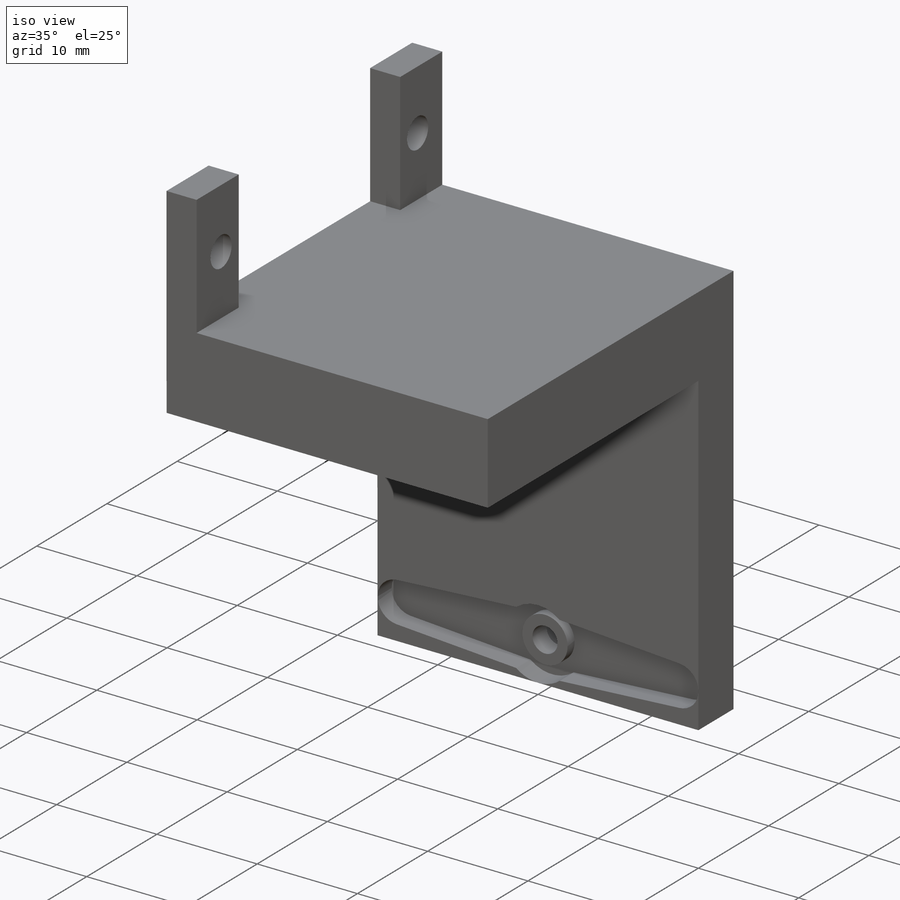
[diagram: iso view]
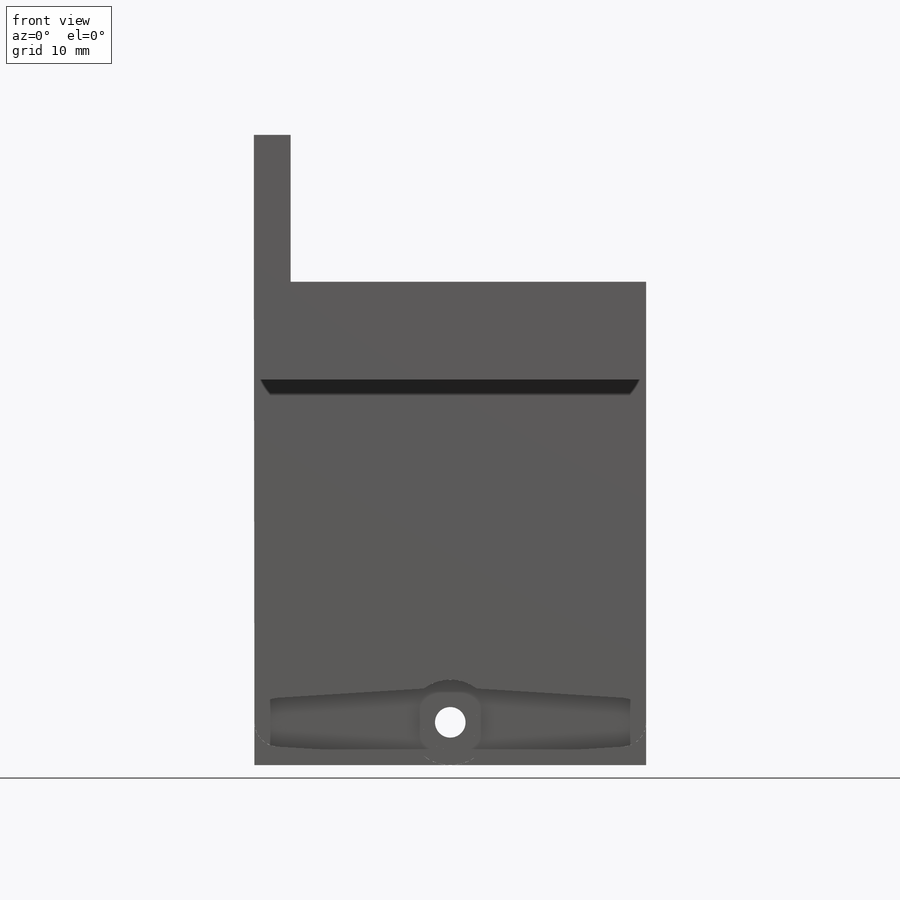
[diagram: front view]
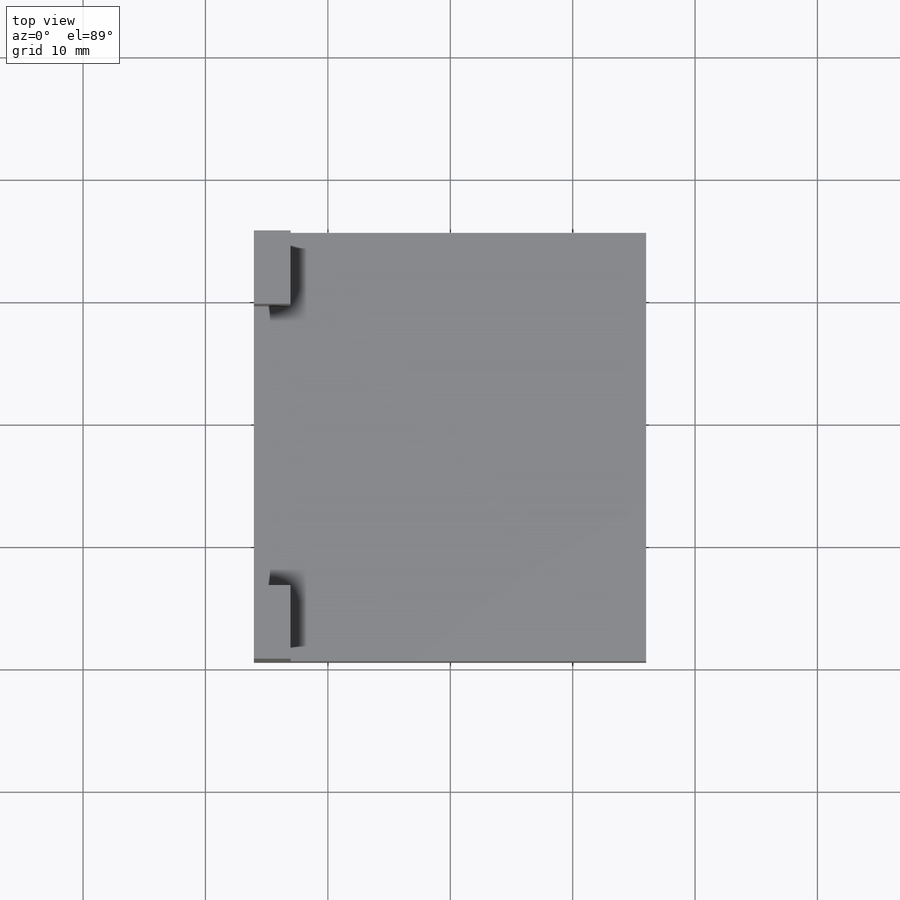
[diagram: top view]
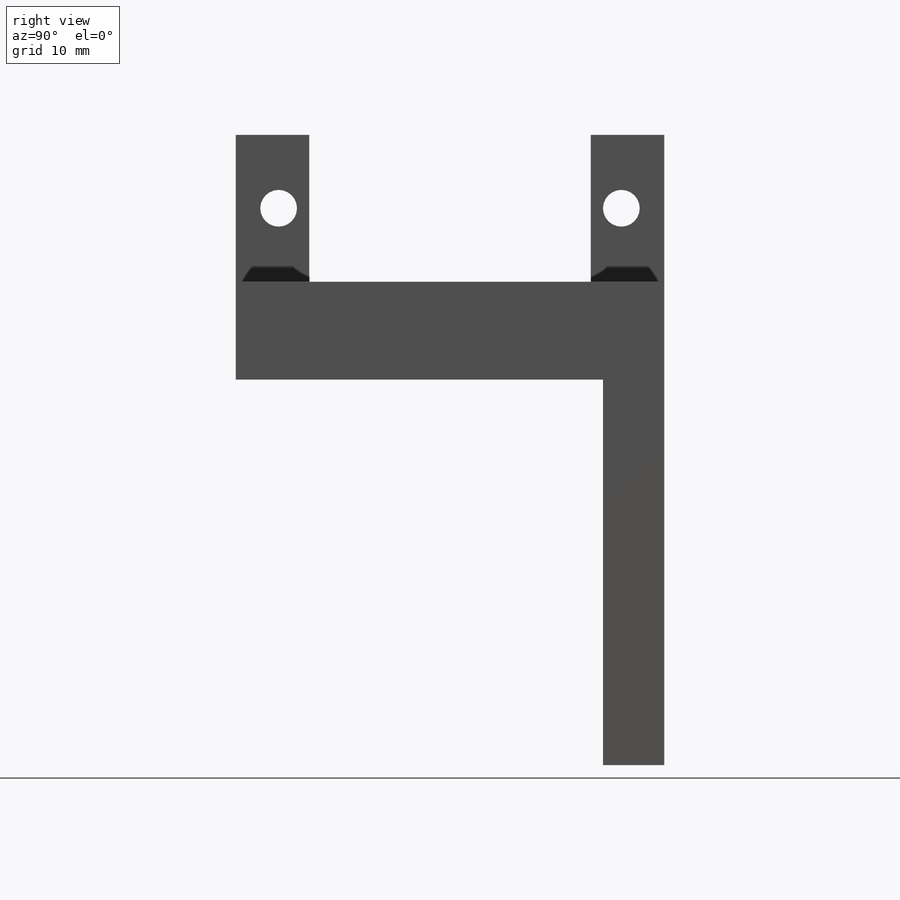
[diagram: right view]
SOLIDWORKS PART (.sldprt)
format: sldprt  version: not decoded by parser v0  size: 287,232 bytes
history: native  units: mm
features: sketch x6, extrude x4, cut_extrude x2, material x1 (+13 scaffold rows collapsed)
feature tree (26):
  scaffold x13  (default folders/planes/origin — collapsed)
  material  "Material <not specified>"
  sketch  "Sketch1"  dims[c1.D1=7.0mm c1.D2=4.5mm c1.D4=~1.247036mm c1.D5=2.0mm c1.D6=1.0mm c1.D7=1.0mm c1.D10=2.5mm c1.D11=7.0mm c1.D3=5.5mm c2.D4=28.0mm c2.D6=4.5mm c2.D9=29.0mm c2.D11=10.0mm c2.D12=~32.044429mm c2.D13=12.0mm c2.D14=3.0mm c3.D11=28.0mm c3.D15=8.0mm]
  extrude  "Boss-Extrude29"  Depth=30mm
  extrude  "Boss-Extrude31"  [1 undecoded]
  sketch  "Sketch1<12>"  dims[D1=5.0mm]
  extrude  "Boss-Extrude104"  [1 undecoded]
  sketch  "Sketch1<23>"  dims[D1=3.0mm D19=3.5mm]
  extrude  "Boss-Extrude105"  [1 undecoded]
  sketch  "Sketch1<24>"  dims[D1=2.0mm D19=1.0mm]
  sketch  "Sketch3"  dims[D1=23.0mm D2=6.0mm]
  cut_extrude  "Cut-Extrude1"  [1 undecoded]
  sketch  "Sketch4"  dims[D1=3.0mm D2=3.0mm D3=2.5mm D4=2.5mm D5=6.0mm]
  cut_extrude  "Cut-Extrude2"  [1 undecoded]
decode coverage: 7 of 12 modeling features carry decoded parameters
note: ~ marks probable driven/reference dimensions
note: 5 parameter values undecoded
summary: no parameter record found for 5 features
note: suppression state not decoded; provenance and decode notes live in map.json
